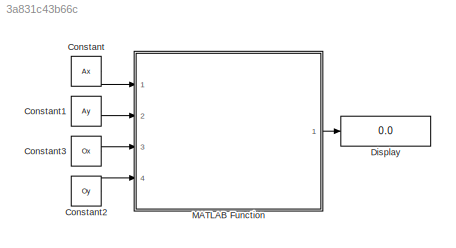
MODEL slx_3a831c43b66c
KIND model
CONFIG AbsTol = auto
CONFIG EnableMultiTasking = off
CONFIG FixedStep = auto
CONFIG MaxStep = auto
CONFIG MinStep = auto
CONFIG RelTol = 1e-3
CONFIG SampleTimeConstraint = Unconstrained
CONFIG SolverName = VariableStepAuto
CONFIG StartTime = 0.0
CONFIG StopTime = 10.0
BLOCK [Constant] Constant
  Value = Ax
BLOCK [Constant] Constant1
  Value = Ay
BLOCK [Constant] Constant2
  Value = Oy
BLOCK [Constant] Constant3
  Value = Ox
BLOCK [Display] Display
  Decimation = 1
  Ports = [1]
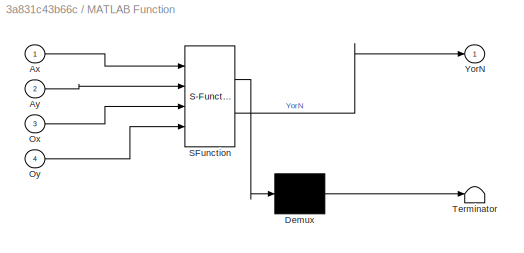
BLOCK [SubSystem] MATLAB Function
  ErrorFcn = Stateflow.Translate.translate
  PermitHierarchicalResolution = ExplicitOnly
  Ports = [4, 1]
  RequestExecContextInheritance = off
  SFBlockType = MATLAB Function
  TreatAsAtomicUnit = on
BLOCK [Demux] MATLAB Function/ Demux 
  Outputs = 1
  Ports = [1, 1]
BLOCK [S-Function] MATLAB Function/ SFunction 
  EnableBusSupport = on
  FunctionName = sf_sfun
  PortCounts = [4 2]
  Ports = [4, 2]
  SFcnIsStateOwnerBlock = off
  SFunctionDeploymentMode = off
  Tag = Stateflow S-Function 2
BLOCK [Terminator] MATLAB Function/ Terminator 
BLOCK [Inport] MATLAB Function/Ax
BLOCK [Inport] MATLAB Function/Ay
  Port = 2
BLOCK [Inport] MATLAB Function/Ox
  Port = 3
BLOCK [Inport] MATLAB Function/Oy
  Port = 4
BLOCK [Outport] MATLAB Function/YorN
LINE Constant1:1 -> MATLAB Function:2
LINE Constant2:1 -> MATLAB Function:4
LINE Constant3:1 -> MATLAB Function:3
LINE Constant:1 -> MATLAB Function:1
LINE MATLAB Function:1 -> Display:1
CHART MATLAB Function states=1 transitions=1
  STATE_LABEL 'eML_blk_kernel()'
  STATE_LABEL 'SCRIPT:\nfunction YorN = fcn(Ax,Ay,Ox,Oy)\ns1=size(Ax);\ns2=size(Ox);\na1=zeros(s1(1),1);\nb1=zeros(s1(1),1);\nc1=zeros(s1(1),1);\na2=zeros(s2(1),1);\nb2=zeros(s2(1),1);\nc2=zeros(s2(1),1);\nYorN=0;\nfor n=1:s1(1)\n   if n < s1(1)\n     post_n=n+1;\n   else\n     post_n=1; \n   end\n   a1(n) = Ay(post_n) - Ay(n);\n   b1(n) = Ax(n) - Ax(post_n);\n   c1(n) = a1(n)*Ax(n) + b1(n)*Ay(n);\nend    \nfor i=1:s2(1)\n   if i < s...<+665ch>'
CHART  states=0 transitions=0
